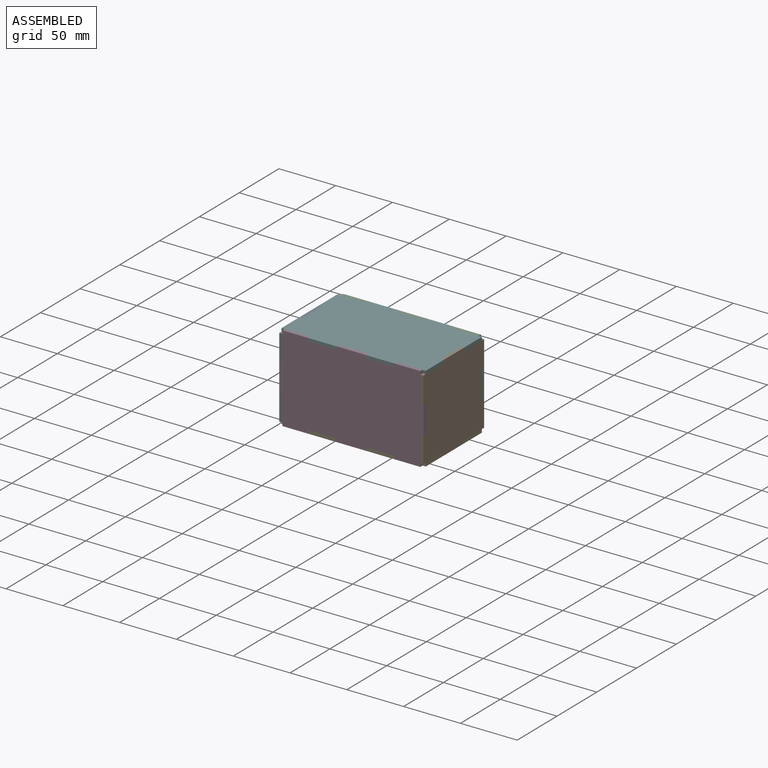
[diagram: assembled view]
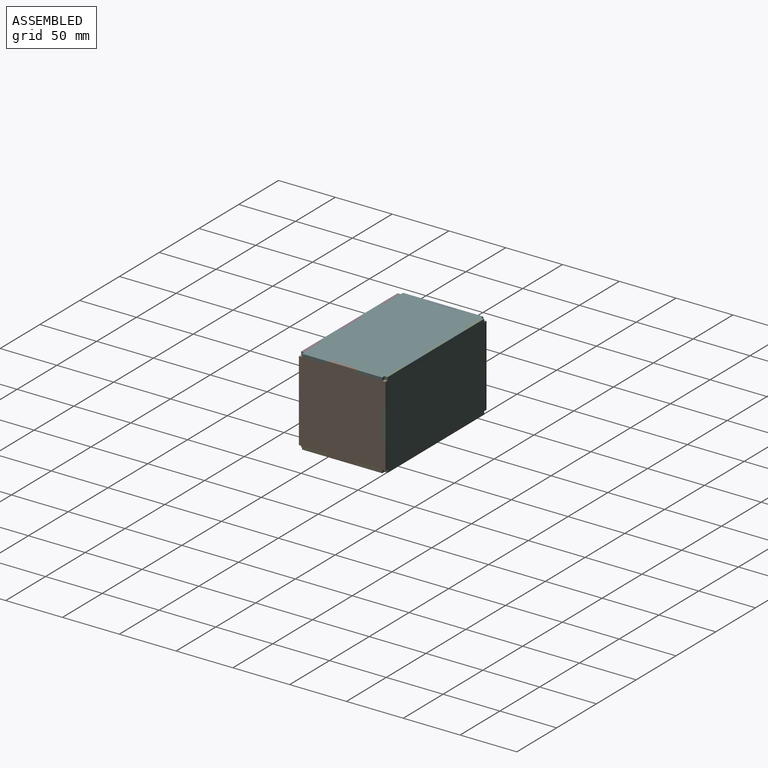
[diagram: assembled view, second angle]
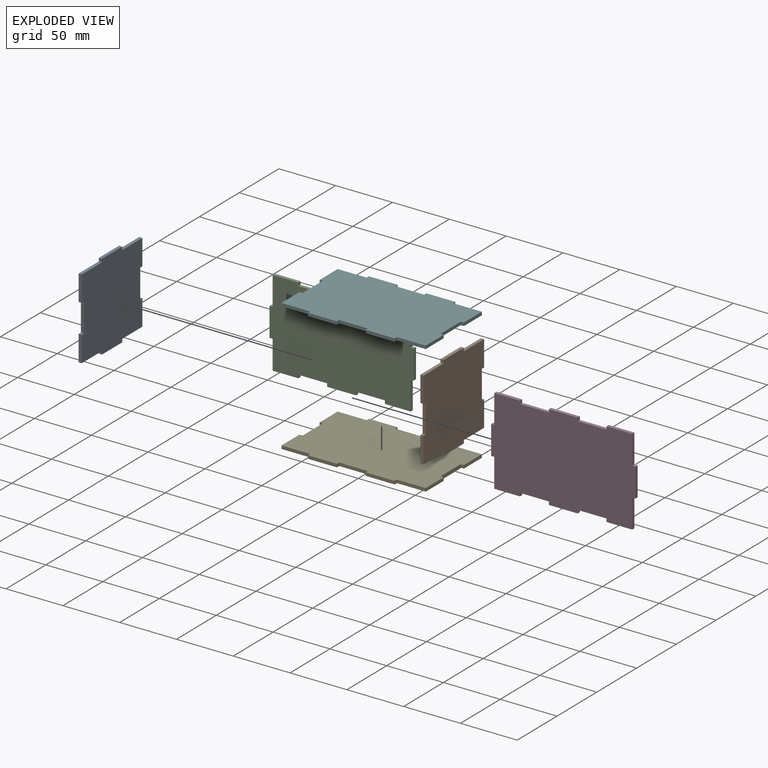
[diagram: exploded view]
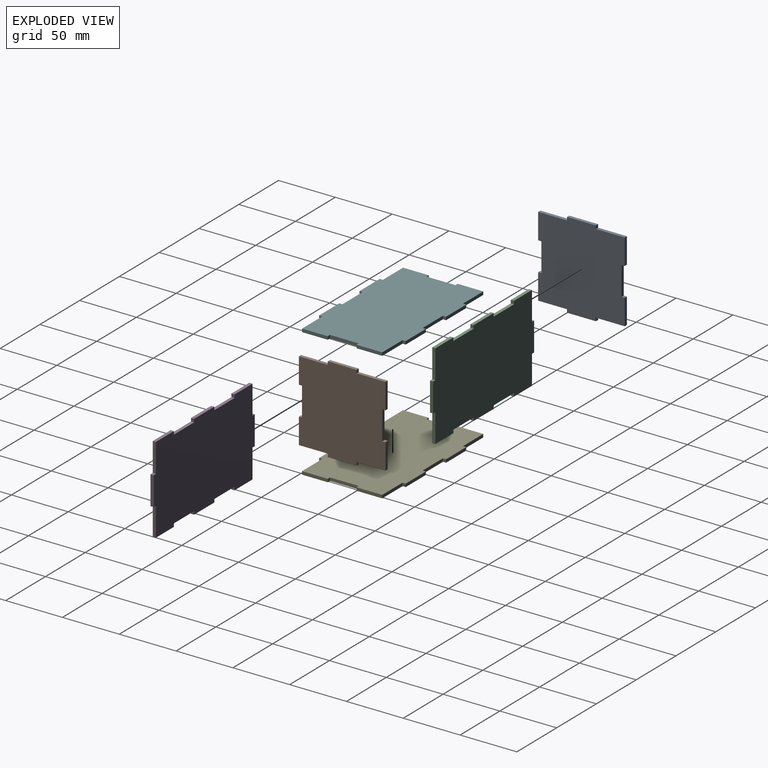
[diagram: exploded view, second angle]
ASSEMBLY  parts=6 mates=15
PART A: 22 faces, bbox 2.8x76.2x76.2 mm
  f0: plane 22.61x2.79mm, normal (0,1,0), area 63.2mm2, adj f2,f3,f13,f21
  f1: plane 22.61x2.79mm, normal (0,-1,0), area 63.2mm2, adj f2,f3,f14,f17
  f2: plane 76.2x76.2mm, normal (1,0,0), area 5380.6mm2, adj f0,f1,f4,f5,f6,f7,f8,f9
  f3: plane 76.2x76.2mm, normal (-1,0,0), area 5380.6mm2, adj f0,f1,f4,f5,f6,f7,f8,f9
  f4: plane 25.4x2.79mm, normal (0,0,-1), area 71mm2, adj f2,f3,f12,f15
  f5: plane 25.4x2.79mm, normal (0,0,1), area 71mm2, adj f2,f3,f8,f11
  f6: plane 22.61x2.79mm, normal (0,-1,0), area 63.2mm2, adj f2,f3,f10,f16
  f7: plane 22.61x2.79mm, normal (0,1,0), area 63.2mm2, adj f2,f3,f9,f19
  f8: plane 2.79x2.79mm, normal (0,1,0), area 7.8mm2, adj f2,f3,f5,f9
  f9: plane 25.4x2.79mm, normal (0,0,1), area 71mm2, adj f2,f3,f7,f8
  f10: plane 25.4x2.79mm, normal (0,0,1), area 71mm2, adj f2,f3,f6,f11
  f11: plane 2.79x2.79mm, normal (0,-1,0), area 7.8mm2, adj f2,f3,f5,f10
  f12: plane 2.79x2.79mm, normal (0,1,0), area 7.8mm2, adj f2,f3,f4,f13
  f13: plane 25.4x2.79mm, normal (0,0,-1), area 71mm2, adj f0,f2,f3,f12
  f14: plane 25.4x2.79mm, normal (0,0,-1), area 71mm2, adj f1,f2,f3,f15
  f15: plane 2.79x2.79mm, normal (0,-1,0), area 7.8mm2, adj f2,f3,f4,f14
  f16: plane 2.79x2.79mm, normal (0,0,-1), area 7.8mm2, adj f2,f3,f6,f18
  f17: plane 2.79x2.79mm, normal (0,0,1), area 7.8mm2, adj f1,f2,f3,f18
  f18: plane 25.4x2.79mm, normal (0,-1,0), area 71mm2, adj f2,f3,f16,f17
  f19: plane 2.79x2.79mm, normal (0,0,-1), area 7.8mm2, adj f2,f3,f7,f20
  f20: plane 25.4x2.79mm, normal (0,1,0), area 71mm2, adj f2,f3,f19,f21
  f21: plane 2.79x2.79mm, normal (0,0,1), area 7.8mm2, adj f0,f2,f3,f20
PART B: same geometry as A
PART C: 30 faces, bbox 127x2.8x76.2 mm
  f0: plane 127x76.2mm, normal (0,-1,0), area 9109.7mm2, adj f1,f3,f4,f5,f6,f7,f8,f9
  f1: plane 25.4x2.79mm, normal (1,0,0), area 71mm2, adj f0,f2,f26,f28
  f2: plane 127x76.2mm, normal (0,1,0), area 9109.7mm2, adj f1,f3,f4,f5,f6,f7,f8,f9
  f3: plane 22.61x2.79mm, normal (0,0,1), area 63.2mm2, adj f0,f2,f13,f25
  f4: plane 25.4x2.79mm, normal (-1,0,0), area 71mm2, adj f0,f2,f22,f24
  f5: plane 22.61x2.79mm, normal (0,0,-1), area 63.2mm2, adj f0,f2,f19,f23
  f6: plane 25.4x2.79mm, normal (0,0,-1), area 71mm2, adj f0,f2,f18,f20
  f7: plane 22.61x2.79mm, normal (0,0,-1), area 63.2mm2, adj f0,f2,f16,f27
  f8: plane 25.4x2.79mm, normal (0,0,1), area 71mm2, adj f0,f2,f10,f15
  f9: plane 22.61x2.79mm, normal (0,0,1), area 63.2mm2, adj f0,f2,f12,f29
  f10: plane 2.79x2.79mm, normal (1,0,0), area 7.8mm2, adj f0,f2,f8,f11
  f11: plane 25.4x2.79mm, normal (0,0,1), area 71mm2, adj f0,f2,f10,f12
  f12: plane 2.79x2.79mm, normal (-1,0,0), area 7.8mm2, adj f0,f2,f9,f11
  f13: plane 2.79x2.79mm, normal (1,0,0), area 7.8mm2, adj f0,f2,f3,f14
  f14: plane 25.4x2.79mm, normal (0,0,1), area 71mm2, adj f0,f2,f13,f15
  f15: plane 2.79x2.79mm, normal (-1,0,0), area 7.8mm2, adj f0,f2,f8,f14
  f16: plane 2.79x2.79mm, normal (-1,0,0), area 7.8mm2, adj f0,f2,f7,f17
  f17: plane 25.4x2.79mm, normal (0,0,-1), area 71mm2, adj f0,f2,f16,f18
  f18: plane 2.79x2.79mm, normal (1,0,0), area 7.8mm2, adj f0,f2,f6,f17
  f19: plane 2.79x2.79mm, normal (1,0,0), area 7.8mm2, adj f0,f2,f5,f21
  f20: plane 2.79x2.79mm, normal (-1,0,0), area 7.8mm2, adj f0,f2,f6,f21
  f21: plane 25.4x2.79mm, normal (0,0,-1), area 71mm2, adj f0,f2,f19,f20
  f22: plane 2.79x2.79mm, normal (0,0,-1), area 7.8mm2, adj f0,f2,f4,f23
  f23: plane 25.4x2.79mm, normal (-1,0,0), area 71mm2, adj f0,f2,f5,f22
  f24: plane 2.79x2.79mm, normal (0,0,1), area 7.8mm2, adj f0,f2,f4,f25
  f25: plane 25.4x2.79mm, normal (-1,0,0), area 71mm2, adj f0,f2,f3,f24
  f26: plane 2.79x2.79mm, normal (0,0,-1), area 7.8mm2, adj f0,f1,f2,f27
  f27: plane 25.4x2.79mm, normal (1,0,0), area 71mm2, adj f0,f2,f7,f26
  f28: plane 2.79x2.79mm, normal (0,0,1), area 7.8mm2, adj f0,f1,f2,f29
  f29: plane 25.4x2.79mm, normal (1,0,0), area 71mm2, adj f0,f2,f9,f28
PART D: same geometry as C
PART E: 30 faces, bbox 127x76.2x2.8 mm
  f0: plane 22.61x2.79mm, normal (-1,0,0), area 63.2mm2, adj f1,f5,f15,f28
  f1: plane 127x76.2mm, normal (0,0,1), area 9109.7mm2, adj f0,f2,f3,f4,f6,f7,f8,f9
  f2: plane 22.61x2.79mm, normal (1,0,0), area 63.2mm2, adj f1,f5,f11,f24
  f3: plane 25.4x2.79mm, normal (0,-1,0), area 71mm2, adj f1,f5,f19,f23
  f4: plane 25.4x2.79mm, normal (0,-1,0), area 71mm2, adj f1,f5,f18,f20
  f5: plane 127x76.2mm, normal (0,0,-1), area 9109.7mm2, adj f0,f2,f3,f4,f6,f7,f8,f9
  f6: plane 25.4x2.79mm, normal (0,1,0), area 71mm2, adj f1,f5,f12,f16
  f7: plane 25.4x2.79mm, normal (0,1,0), area 71mm2, adj f1,f5,f10,f14
  f8: plane 22.61x2.79mm, normal (-1,0,0), area 63.2mm2, adj f1,f5,f22,f27
  f9: plane 22.61x2.79mm, normal (1,0,0), area 63.2mm2, adj f1,f5,f17,f25
  f10: plane 2.79x2.79mm, normal (1,0,0), area 7.8mm2, adj f1,f5,f7,f11
  f11: plane 25.4x2.79mm, normal (0,1,0), area 71mm2, adj f1,f2,f5,f10
  f12: plane 2.79x2.79mm, normal (1,0,0), area 7.8mm2, adj f1,f5,f6,f13
  f13: plane 25.4x2.79mm, normal (0,1,0), area 71mm2, adj f1,f5,f12,f14
  f14: plane 2.79x2.79mm, normal (-1,0,0), area 7.8mm2, adj f1,f5,f7,f13
  f15: plane 25.4x2.79mm, normal (0,1,0), area 71mm2, adj f0,f1,f5,f16
  f16: plane 2.79x2.79mm, normal (-1,0,0), area 7.8mm2, adj f1,f5,f6,f15
  f17: plane 25.4x2.79mm, normal (0,-1,0), area 71mm2, adj f1,f5,f9,f18
  f18: plane 2.79x2.79mm, normal (1,0,0), area 7.8mm2, adj f1,f4,f5,f17
  f19: plane 2.79x2.79mm, normal (1,0,0), area 7.8mm2, adj f1,f3,f5,f21
  f20: plane 2.79x2.79mm, normal (-1,0,0), area 7.8mm2, adj f1,f4,f5,f21
  f21: plane 25.4x2.79mm, normal (0,-1,0), area 71mm2, adj f1,f5,f19,f20
  f22: plane 25.4x2.79mm, normal (0,-1,0), area 71mm2, adj f1,f5,f8,f23
  f23: plane 2.79x2.79mm, normal (-1,0,0), area 7.8mm2, adj f1,f3,f5,f22
  f24: plane 2.79x2.79mm, normal (0,-1,0), area 7.8mm2, adj f1,f2,f5,f26
  f25: plane 2.79x2.79mm, normal (0,1,0), area 7.8mm2, adj f1,f5,f9,f26
  f26: plane 25.4x2.79mm, normal (1,0,0), area 71mm2, adj f1,f5,f24,f25
  f27: plane 2.79x2.79mm, normal (0,1,0), area 7.8mm2, adj f1,f5,f8,f29
  f28: plane 2.79x2.79mm, normal (0,-1,0), area 7.8mm2, adj f0,f1,f5,f29
  f29: plane 25.4x2.79mm, normal (-1,0,0), area 71mm2, adj f1,f5,f27,f28
PART F: same geometry as E
PLACE A t=(-121.11,-51.05,148.64)mm
PLACE B t=(3.1,-51.05,148.64)mm
PLACE C t=(-63.05,-21.61,136.62)mm
PLACE D t=(-63.05,-95.02,136.62)mm
PLACE E t=(-71.43,-65.63,105.26)mm
PLACE F t=(-71.43,-65.63,178.67)mm
MATE planar C.f8 <-> F.f1  axis (0,0,1) through (-57.61,-23.01,181.46)mm
MATE planar C.f6 <-> E.f5  axis (0,0,-1) through (-57.61,-23.01,105.26)mm
MATE planar D.f1 <-> F.f2  axis (1,0,0) through (5.89,-96.41,143.36)mm
MATE planar A.f4 <-> E.f5  axis (0,0,-1) through (-119.71,-59.71,105.26)mm
MATE planar B.f2 <-> C.f1  axis (1,0,0) through (5.89,-59.71,143.36)mm
MATE planar D.f0 <-> F.f3  axis (0,-1,0) through (-57.61,-97.81,143.36)mm
MATE planar B.f5 <-> F.f1  axis (0,0,1) through (4.49,-59.71,181.46)mm
MATE planar A.f0 <-> C.f2  axis (0,1,0) through (-119.71,-21.61,119.36)mm
MATE planar D.f8 <-> F.f1  axis (0,0,1) through (-57.61,-96.41,181.46)mm
MATE planar E.f7 <-> C.f2  axis (0,1,0) through (-32.21,-21.61,106.66)mm
MATE planar B.f6 <-> D.f0  axis (0,-1,0) through (5.89,-97.81,156.06)mm
MATE planar E.f2 <-> C.f1  axis (1,0,0) through (5.89,-35.71,106.66)mm
MATE planar F.f2 <-> C.f1  axis (1,0,0) through (5.89,-35.71,180.06)mm
MATE planar D.f4 <-> A.f3  axis (-1,0,0) through (-121.11,-95.02,143.36)mm
MATE planar F.f7 <-> C.f2  axis (0,1,0) through (-32.21,-21.61,178.67)mm
